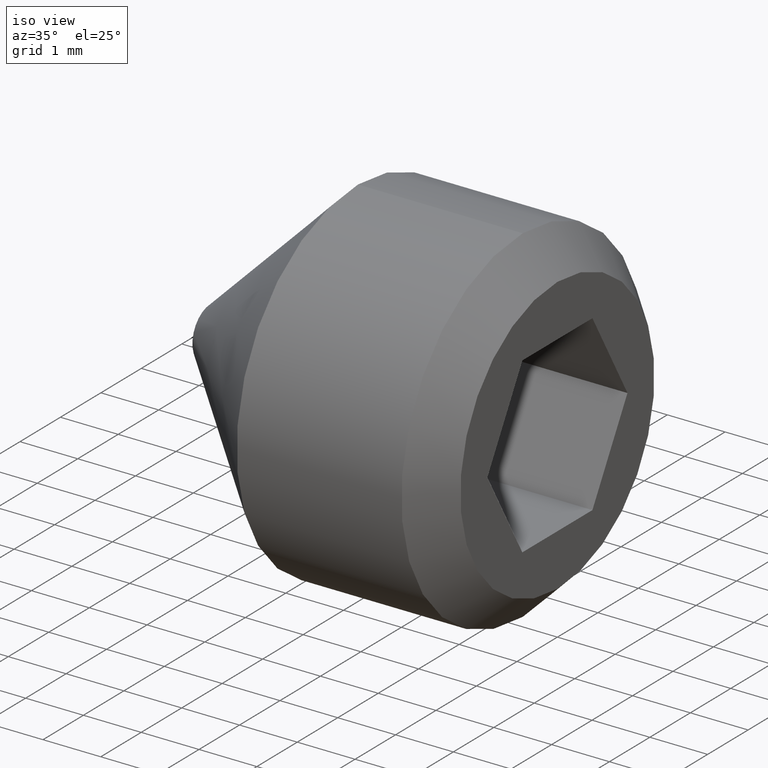
[diagram: clean part render]
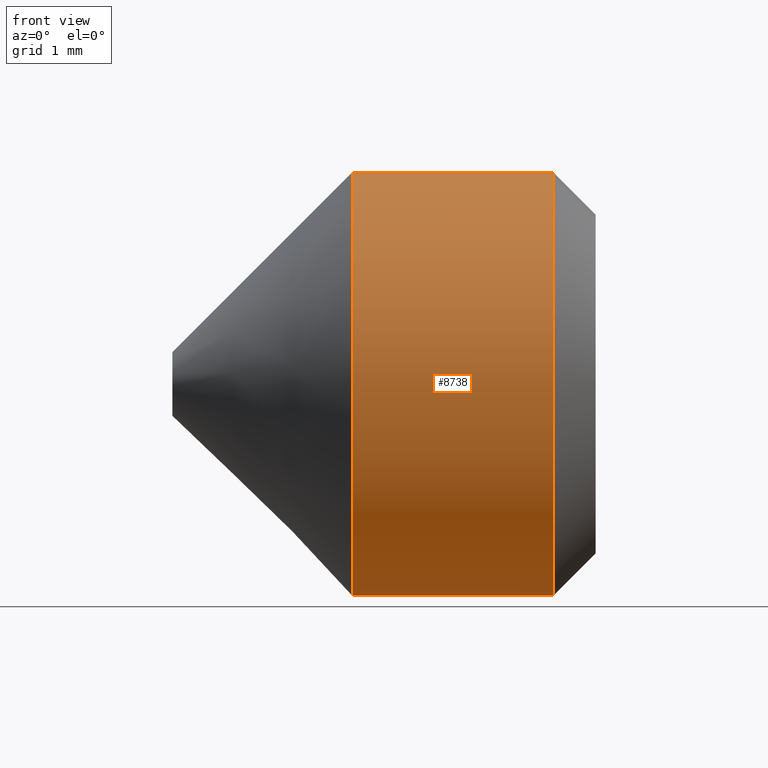
[diagram: tour spotlight — one face highlighted and labeled with its STEP entity id]
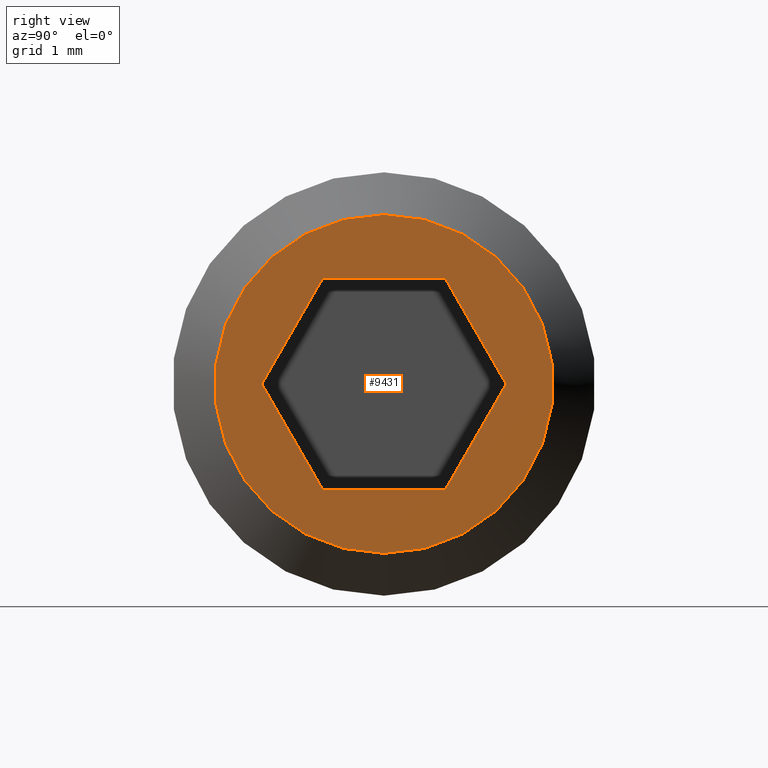
[diagram: tour spotlight — one face highlighted and labeled with its STEP entity id]
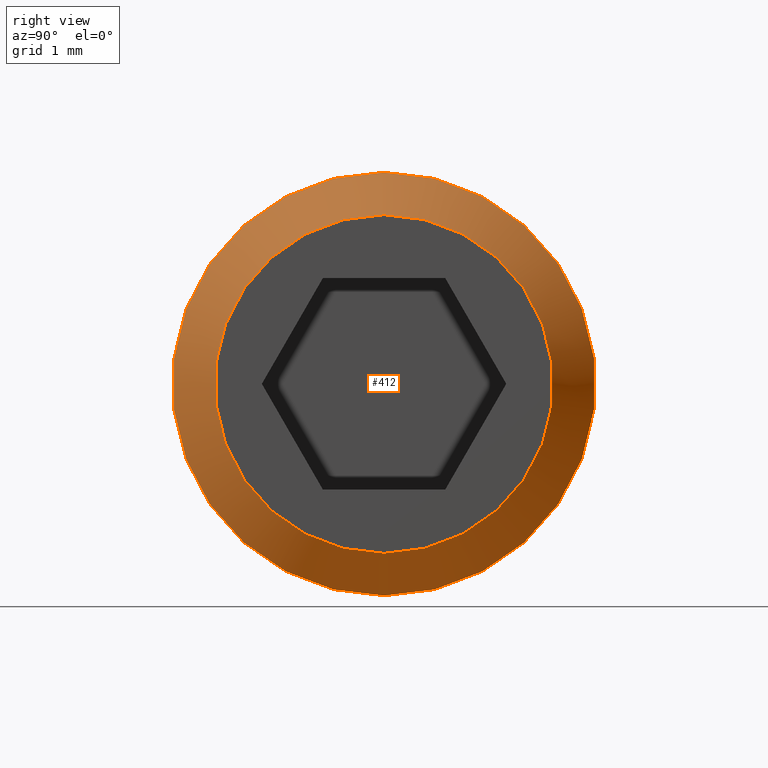
[diagram: tour spotlight — one face highlighted and labeled with its STEP entity id]
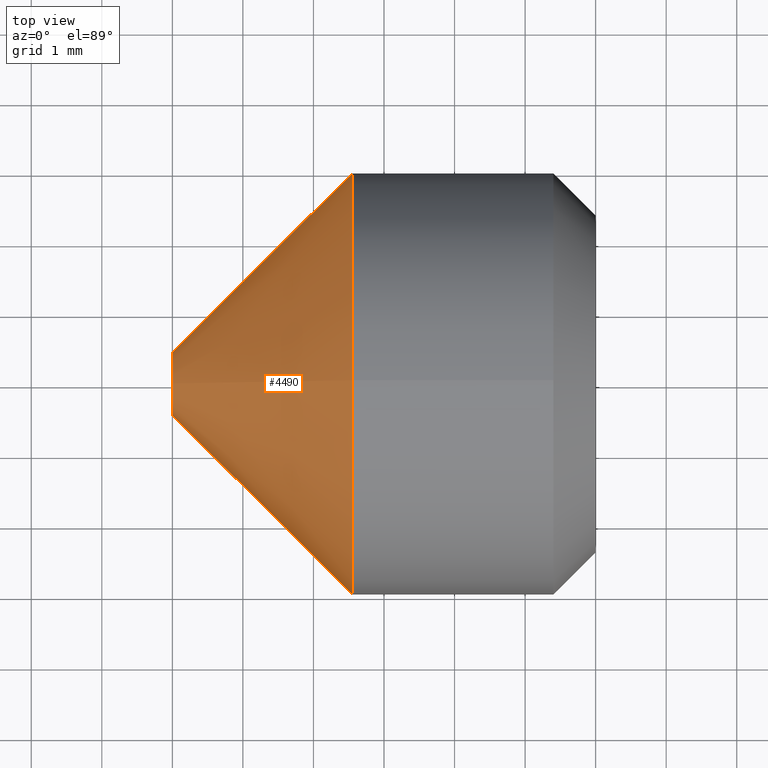
[diagram: tour spotlight — one face highlighted and labeled with its STEP entity id]
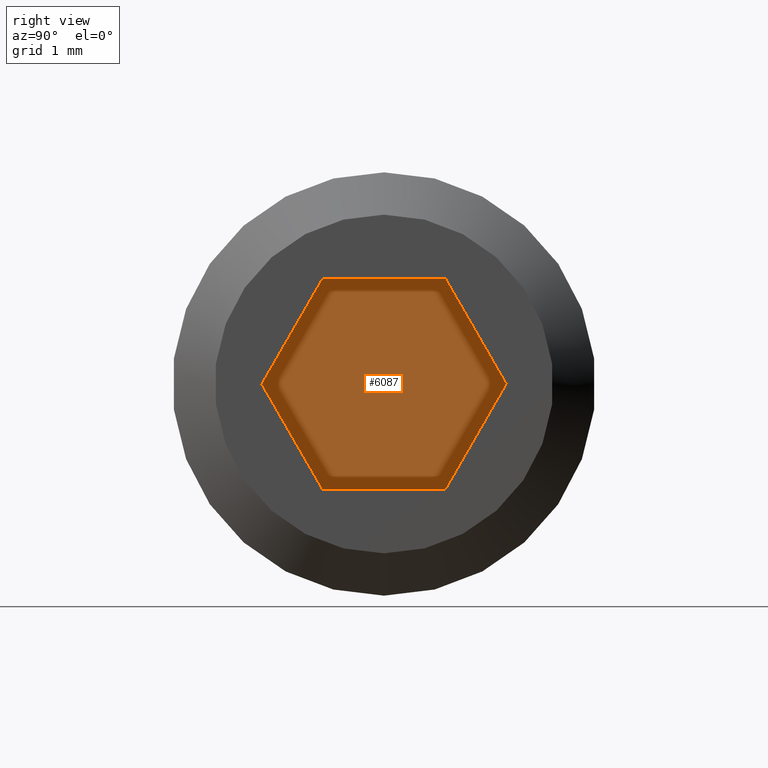
[diagram: tour spotlight — one face highlighted and labeled with its STEP entity id]
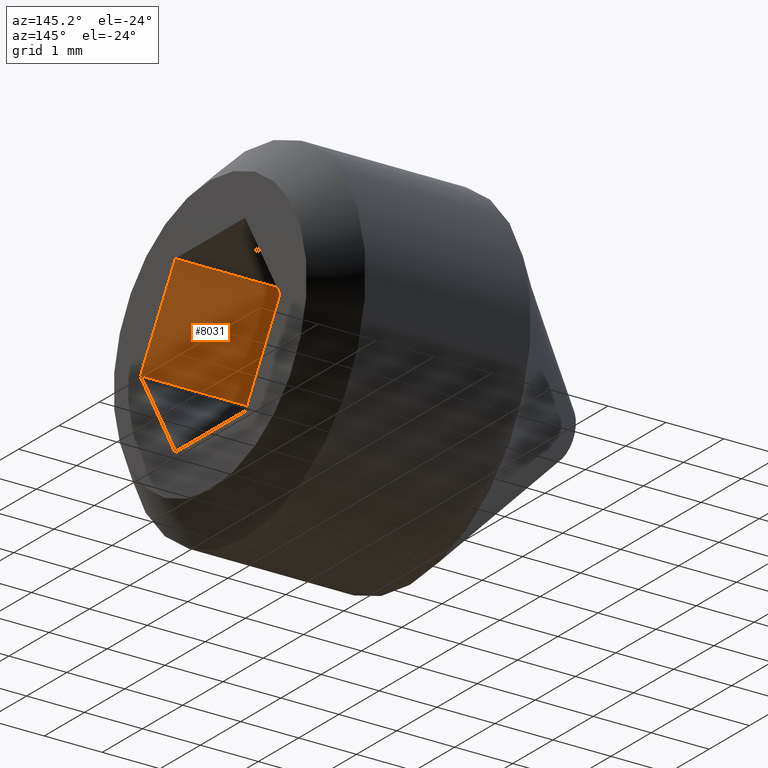
[diagram: tour spotlight — one face highlighted and labeled with its STEP entity id]
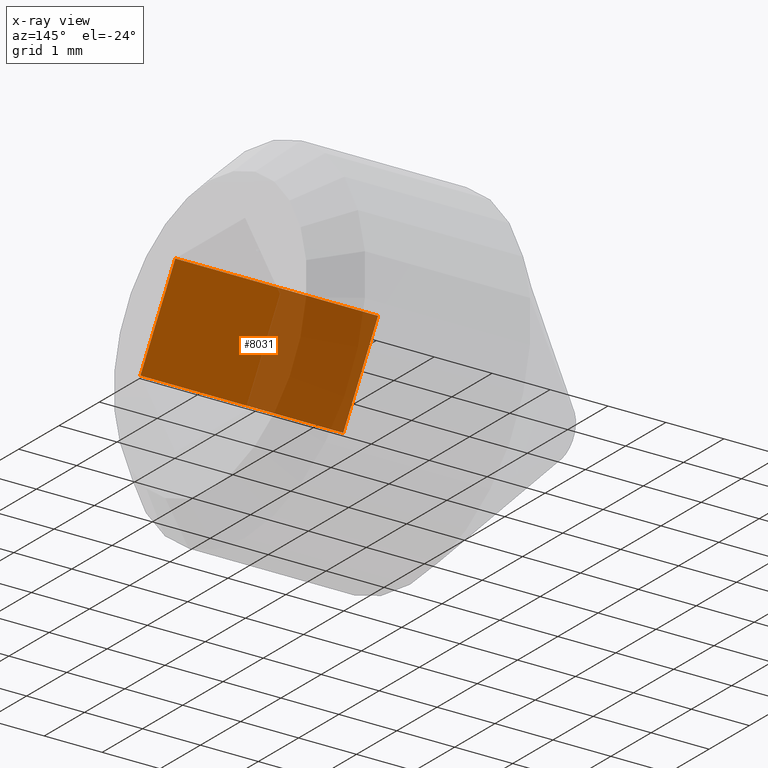
[diagram: x-ray of the same camera — body ghosted, this tour face saturated]
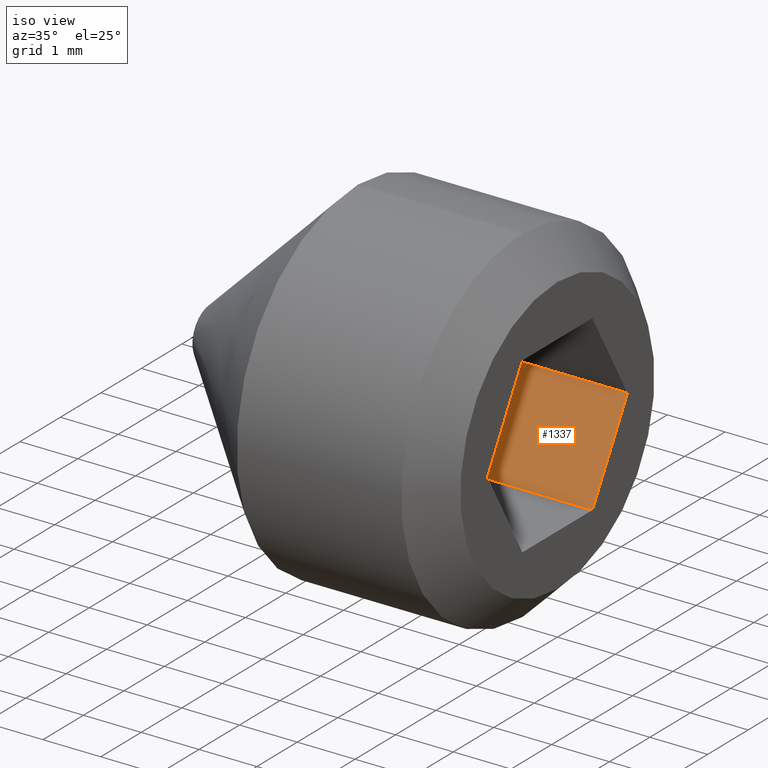
[diagram: tour spotlight — one face highlighted and labeled with its STEP entity id]
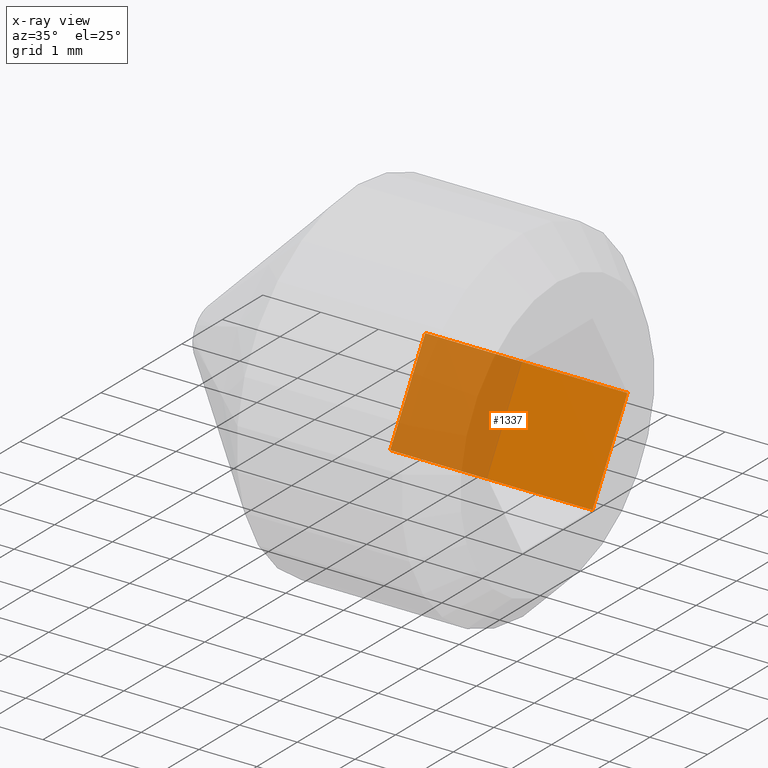
[diagram: x-ray of the same camera — body ghosted, this tour face saturated]
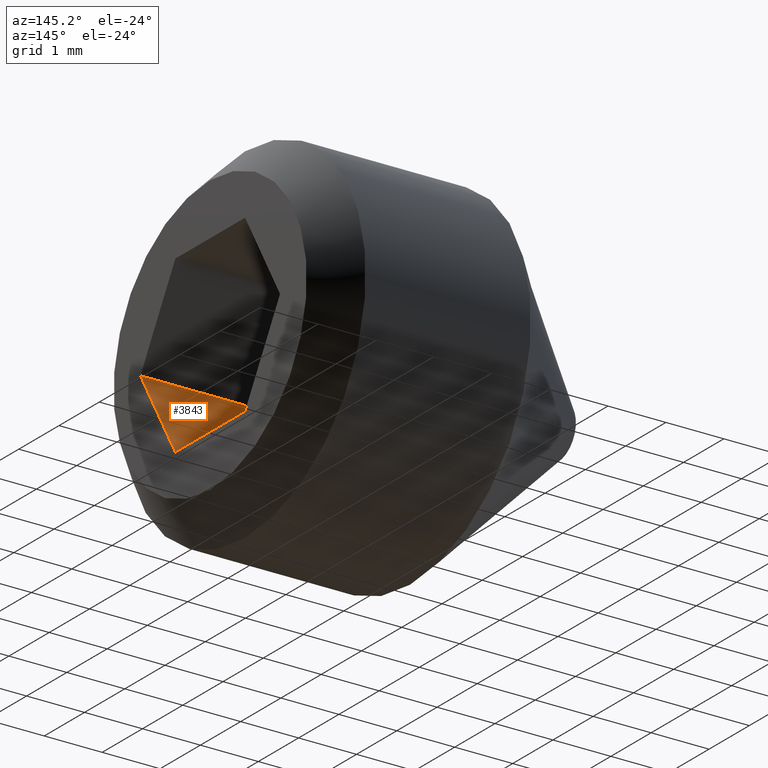
[diagram: tour spotlight — one face highlighted and labeled with its STEP entity id]
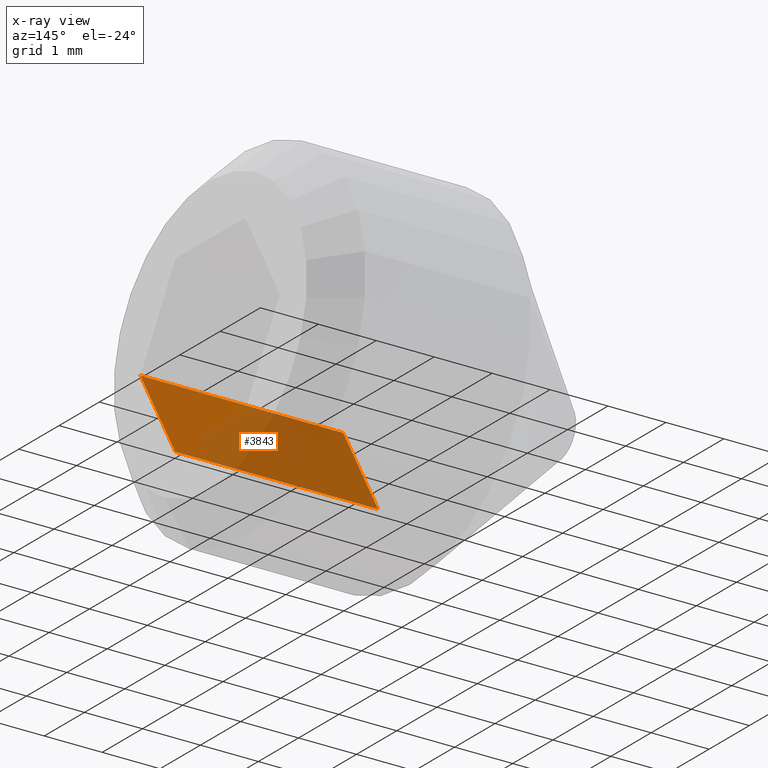
[diagram: x-ray of the same camera — body ghosted, this tour face saturated]
A machine part: a face-by-face anatomy tour. The part has 157 B-rep faces; the first image is the clean iso view, then the 8 largest visible faces are spotlighted one at a time (largest first), each with its STEP entity span.

Face 1 — front view, entity #8738. In plain terms, the highlighted cylindrical surface (bore or boss wall) has radius 3 mm, axis along (-1, -0, -0).
Definition (entity closure, byte-faithful):
#638 = DIRECTION ( 'NONE',  ( 0.0000000000000000000, 0.0000000000000000000, -1.000000000000000000 ) ) ;
#789 = EDGE_LOOP ( 'NONE', ( #6239 ) ) ;
#926 = CYLINDRICAL_SURFACE ( 'NONE', #8397, 3.000000000000000400 ) ;
#939 = CARTESIAN_POINT ( 'NONE',  ( 2.549999999999971000, 0.0000000000000000000, 0.0000000000000000000 ) ) ;
#1378 = AXIS2_PLACEMENT_3D ( 'NONE', #3950, #8122, #638 ) ;
#1866 = EDGE_LOOP ( 'NONE', ( #10400 ) ) ;
#1979 = FACE_OUTER_BOUND ( 'NONE', #789, .T. ) ;
#2183 = CIRCLE ( 'NONE', #1378, 3.000000000000000400 ) ;
#2530 = DIRECTION ( 'NONE',  ( -1.000000000000000000, -0.0000000000000000000, -0.0000000000000000000 ) ) ;
#3091 = CARTESIAN_POINT ( 'NONE',  ( 6.000000000000000000, 0.0000000000000000000, 0.0000000000000000000 ) ) ;
#3950 = CARTESIAN_POINT ( 'NONE',  ( 5.399999999999998600, 0.0000000000000000000, 0.0000000000000000000 ) ) ;
#5379 = EDGE_CURVE ( 'NONE', #9236, #9236, #2183, .T. ) ;
#5628 = VERTEX_POINT ( 'NONE', #10030 ) ;
#5786 = DIRECTION ( 'NONE',  ( 0.0000000000000000000, 0.0000000000000000000, 1.000000000000000000 ) ) ;
#6239 = ORIENTED_EDGE ( 'NONE', *, *, #5379, .T. ) ;
#6387 = DIRECTION ( 'NONE',  ( -1.000000000000000000, -0.0000000000000000000, -0.0000000000000000000 ) ) ;
#7486 = CARTESIAN_POINT ( 'NONE',  ( 5.399999999999998600, 0.0000000000000000000, -3.000000000000000400 ) ) ;
#7923 = EDGE_CURVE ( 'NONE', #5628, #5628, #8519, .T. ) ;
#8085 = FACE_OUTER_BOUND ( 'NONE', #1866, .T. ) ;
#8122 = DIRECTION ( 'NONE',  ( -1.000000000000000000, 0.0000000000000000000, 0.0000000000000000000 ) ) ;
#8147 = DIRECTION ( 'NONE',  ( 0.0000000000000000000, 0.0000000000000000000, 1.000000000000000000 ) ) ;
#8397 = AXIS2_PLACEMENT_3D ( 'NONE', #3091, #6387, #8147 ) ;
#8519 = CIRCLE ( 'NONE', #9302, 3.000000000000000400 ) ;
#8738 = ADVANCED_FACE ( 'NONE', ( #1979, #8085 ), #926, .T. ) ;
#9236 = VERTEX_POINT ( 'NONE', #7486 ) ;
#9302 = AXIS2_PLACEMENT_3D ( 'NONE', #939, #2530, #5786 ) ;
#10030 = CARTESIAN_POINT ( 'NONE',  ( 2.549999999999971000, 0.0000000000000000000, 3.000000000000000400 ) ) ;
#10400 = ORIENTED_EDGE ( 'NONE', *, *, #7923, .F. ) ;

Face 2 — right view, entity #9431. In plain terms, the highlighted planar face has unit normal (1, 0, 0).
Definition (entity closure, byte-faithful):
#431 = VECTOR ( 'NONE', #7477, 1000.000000000000100 ) ;
#485 = LINE ( 'NONE', #1594, #8790 ) ;
#511 = DIRECTION ( 'NONE',  ( 1.000000000000000000, 0.0000000000000000000, 0.0000000000000000000 ) ) ;
#791 = ORIENTED_EDGE ( 'NONE', *, *, #9802, .F. ) ;
#1594 = CARTESIAN_POINT ( 'NONE',  ( 6.000000000000000000, -1.732050807568877000, 4.566523201967821500E-016 ) ) ;
#2084 = CARTESIAN_POINT ( 'NONE',  ( 6.000000000000000000, -0.8660254037844380400, 1.500000000000000000 ) ) ;
#2174 = VECTOR ( 'NONE', #7798, 1000.000000000000000 ) ;
#2626 = EDGE_CURVE ( 'NONE', #10735, #4256, #2858, .T. ) ;
#2773 = EDGE_CURVE ( 'NONE', #7934, #8188, #485, .T. ) ;
#2858 = LINE ( 'NONE', #8204, #6663 ) ;
#3130 = VERTEX_POINT ( 'NONE', #2084 ) ;
#3460 = CARTESIAN_POINT ( 'NONE',  ( 6.000000000000000000, 0.8660254037844393700, 1.500000000000000000 ) ) ;
#3749 = VERTEX_POINT ( 'NONE', #7335 ) ;
#3902 = EDGE_LOOP ( 'NONE', ( #6158, #9292, #6882, #791, #8590, #9834 ) ) ;
#3925 = FACE_OUTER_BOUND ( 'NONE', #8796, .T. ) ;
#4030 = PLANE ( 'NONE',  #6490 ) ;
#4172 = DIRECTION ( 'NONE',  ( 0.0000000000000000000, -0.5000000000000002200, -0.8660254037844384900 ) ) ;
#4250 = VECTOR ( 'NONE', #4172, 1000.000000000000200 ) ;
#4256 = VERTEX_POINT ( 'NONE', #9251 ) ;
#4614 = CARTESIAN_POINT ( 'NONE',  ( 6.000000000000000000, 0.0000000000000000000, 0.0000000000000000000 ) ) ;
#4824 = CARTESIAN_POINT ( 'NONE',  ( 6.000000000000000000, 1.732050807568877900, 4.034455522966426400E-016 ) ) ;
#4850 = LINE ( 'NONE', #10681, #431 ) ;
#4873 = AXIS2_PLACEMENT_3D ( 'NONE', #4614, #511, #8888 ) ;
#5076 = CARTESIAN_POINT ( 'NONE',  ( 6.000000000000000000, 0.0000000000000000000, -2.400000000000001200 ) ) ;
#5177 = VECTOR ( 'NONE', #10055, 1000.000000000000000 ) ;
#5712 = CARTESIAN_POINT ( 'NONE',  ( 6.000000000000000000, 0.0000000000000000000, 0.0000000000000000000 ) ) ;
#5948 = LINE ( 'NONE', #6974, #2174 ) ;
#6158 = ORIENTED_EDGE ( 'NONE', *, *, #7309, .F. ) ;
#6397 = CARTESIAN_POINT ( 'NONE',  ( 6.000000000000000000, -0.8660254037844388200, -1.499999999999999800 ) ) ;
#6480 = LINE ( 'NONE', #9134, #4250 ) ;
#6490 = AXIS2_PLACEMENT_3D ( 'NONE', #5712, #8029, #8857 ) ;
#6614 = EDGE_CURVE ( 'NONE', #4256, #3130, #7652, .T. ) ;
#6663 = VECTOR ( 'NONE', #8953, 1000.000000000000200 ) ;
#6823 = EDGE_CURVE ( 'NONE', #8188, #3749, #5948, .T. ) ;
#6882 = ORIENTED_EDGE ( 'NONE', *, *, #2626, .F. ) ;
#6974 = CARTESIAN_POINT ( 'NONE',  ( 6.000000000000000000, -0.8660254037844388200, -1.499999999999999800 ) ) ;
#7309 = EDGE_CURVE ( 'NONE', #3130, #7934, #6480, .T. ) ;
#7335 = CARTESIAN_POINT ( 'NONE',  ( 6.000000000000000000, 0.8660254037844389300, -1.499999999999999800 ) ) ;
#7477 = DIRECTION ( 'NONE',  ( 0.0000000000000000000, 0.5000000000000001100, 0.8660254037844386000 ) ) ;
#7652 = LINE ( 'NONE', #3460, #5177 ) ;
#7798 = DIRECTION ( 'NONE',  ( 0.0000000000000000000, 1.000000000000000000, 0.0000000000000000000 ) ) ;
#7934 = VERTEX_POINT ( 'NONE', #10036 ) ;
#8029 = DIRECTION ( 'NONE',  ( 1.000000000000000000, 0.0000000000000000000, 0.0000000000000000000 ) ) ;
#8041 = ORIENTED_EDGE ( 'NONE', *, *, #9299, .T. ) ;
#8188 = VERTEX_POINT ( 'NONE', #6397 ) ;
#8204 = CARTESIAN_POINT ( 'NONE',  ( 6.000000000000000000, 1.732050807568877900, 4.034455522966426400E-016 ) ) ;
#8238 = DIRECTION ( 'NONE',  ( 0.0000000000000000000, 0.4999999999999997200, -0.8660254037844388200 ) ) ;
#8590 = ORIENTED_EDGE ( 'NONE', *, *, #6823, .F. ) ;
#8593 = FACE_BOUND ( 'NONE', #3902, .T. ) ;
#8790 = VECTOR ( 'NONE', #8238, 1000.000000000000100 ) ;
#8796 = EDGE_LOOP ( 'NONE', ( #8041 ) ) ;
#8853 = CIRCLE ( 'NONE', #4873, 2.400000000000001200 ) ;
#8857 = DIRECTION ( 'NONE',  ( 0.0000000000000000000, 0.0000000000000000000, -1.000000000000000000 ) ) ;
#8888 = DIRECTION ( 'NONE',  ( 0.0000000000000000000, 0.0000000000000000000, -1.000000000000000000 ) ) ;
#8953 = DIRECTION ( 'NONE',  ( 0.0000000000000000000, -0.5000000000000000000, 0.8660254037844386000 ) ) ;
#9134 = CARTESIAN_POINT ( 'NONE',  ( 6.000000000000000000, -0.8660254037844380400, 1.500000000000000000 ) ) ;
#9251 = CARTESIAN_POINT ( 'NONE',  ( 6.000000000000000000, 0.8660254037844393700, 1.500000000000000000 ) ) ;
#9292 = ORIENTED_EDGE ( 'NONE', *, *, #6614, .F. ) ;
#9299 = EDGE_CURVE ( 'NONE', #10140, #10140, #8853, .T. ) ;
#9431 = ADVANCED_FACE ( 'NONE', ( #8593, #3925 ), #4030, .T. ) ;
#9802 = EDGE_CURVE ( 'NONE', #3749, #10735, #4850, .T. ) ;
#9834 = ORIENTED_EDGE ( 'NONE', *, *, #2773, .F. ) ;
#10036 = CARTESIAN_POINT ( 'NONE',  ( 6.000000000000000000, -1.732050807568877200, 5.421010862427522200E-016 ) ) ;
#10055 = DIRECTION ( 'NONE',  ( 0.0000000000000000000, -1.000000000000000000, 0.0000000000000000000 ) ) ;
#10140 = VERTEX_POINT ( 'NONE', #5076 ) ;
#10681 = CARTESIAN_POINT ( 'NONE',  ( 6.000000000000000000, 0.8660254037844389300, -1.499999999999999800 ) ) ;
#10735 = VERTEX_POINT ( 'NONE', #4824 ) ;

Face 3 — right view, entity #412. In plain terms, the highlighted conical surface has half-angle 45 deg.
Definition (entity closure, byte-faithful):
#412 = ADVANCED_FACE ( 'NONE', ( #1567, #3510 ), #2086, .T. ) ;
#511 = DIRECTION ( 'NONE',  ( 1.000000000000000000, 0.0000000000000000000, 0.0000000000000000000 ) ) ;
#638 = DIRECTION ( 'NONE',  ( 0.0000000000000000000, 0.0000000000000000000, -1.000000000000000000 ) ) ;
#1191 = CARTESIAN_POINT ( 'NONE',  ( 6.000000000000000000, 0.0000000000000000000, 0.0000000000000000000 ) ) ;
#1378 = AXIS2_PLACEMENT_3D ( 'NONE', #3950, #8122, #638 ) ;
#1567 = FACE_OUTER_BOUND ( 'NONE', #6094, .T. ) ;
#2086 = CONICAL_SURFACE ( 'NONE', #10053, 2.400000000000001200, 0.7853981633974465000 ) ;
#2183 = CIRCLE ( 'NONE', #1378, 3.000000000000000400 ) ;
#3115 = ORIENTED_EDGE ( 'NONE', *, *, #5379, .F. ) ;
#3510 = FACE_BOUND ( 'NONE', #5746, .T. ) ;
#3950 = CARTESIAN_POINT ( 'NONE',  ( 5.399999999999998600, 0.0000000000000000000, 0.0000000000000000000 ) ) ;
#4614 = CARTESIAN_POINT ( 'NONE',  ( 6.000000000000000000, 0.0000000000000000000, 0.0000000000000000000 ) ) ;
#4832 = ORIENTED_EDGE ( 'NONE', *, *, #9299, .F. ) ;
#4873 = AXIS2_PLACEMENT_3D ( 'NONE', #4614, #511, #8888 ) ;
#5076 = CARTESIAN_POINT ( 'NONE',  ( 6.000000000000000000, 0.0000000000000000000, -2.400000000000001200 ) ) ;
#5379 = EDGE_CURVE ( 'NONE', #9236, #9236, #2183, .T. ) ;
#5746 = EDGE_LOOP ( 'NONE', ( #4832 ) ) ;
#6094 = EDGE_LOOP ( 'NONE', ( #3115 ) ) ;
#7486 = CARTESIAN_POINT ( 'NONE',  ( 5.399999999999998600, 0.0000000000000000000, -3.000000000000000400 ) ) ;
#8122 = DIRECTION ( 'NONE',  ( -1.000000000000000000, 0.0000000000000000000, 0.0000000000000000000 ) ) ;
#8853 = CIRCLE ( 'NONE', #4873, 2.400000000000001200 ) ;
#8888 = DIRECTION ( 'NONE',  ( 0.0000000000000000000, 0.0000000000000000000, -1.000000000000000000 ) ) ;
#9236 = VERTEX_POINT ( 'NONE', #7486 ) ;
#9299 = EDGE_CURVE ( 'NONE', #10140, #10140, #8853, .T. ) ;
#9564 = DIRECTION ( 'NONE',  ( -1.000000000000000000, 0.0000000000000000000, 0.0000000000000000000 ) ) ;
#10053 = AXIS2_PLACEMENT_3D ( 'NONE', #1191, #9564, #10395 ) ;
#10140 = VERTEX_POINT ( 'NONE', #5076 ) ;
#10395 = DIRECTION ( 'NONE',  ( 0.0000000000000000000, 0.0000000000000000000, 1.000000000000000000 ) ) ;

Face 4 — top view, entity #4490. In plain terms, the highlighted conical surface has half-angle 45 deg.
Definition (entity closure, byte-faithful):
#939 = CARTESIAN_POINT ( 'NONE',  ( 2.549999999999971000, 0.0000000000000000000, 0.0000000000000000000 ) ) ;
#1400 = EDGE_LOOP ( 'NONE', ( #6268 ) ) ;
#1836 = CIRCLE ( 'NONE', #10619, 0.4500000000000000100 ) ;
#1997 = CARTESIAN_POINT ( 'NONE',  ( 4.347496136973103900E-016, 0.0000000000000000000, 0.0000000000000000000 ) ) ;
#2227 = DIRECTION ( 'NONE',  ( 0.0000000000000000000, 0.0000000000000000000, 1.000000000000000000 ) ) ;
#2530 = DIRECTION ( 'NONE',  ( -1.000000000000000000, -0.0000000000000000000, -0.0000000000000000000 ) ) ;
#3356 = FACE_OUTER_BOUND ( 'NONE', #4981, .T. ) ;
#3499 = FACE_BOUND ( 'NONE', #1400, .T. ) ;
#4490 = ADVANCED_FACE ( 'NONE', ( #3356, #3499 ), #8540, .T. ) ;
#4981 = EDGE_LOOP ( 'NONE', ( #8106 ) ) ;
#5628 = VERTEX_POINT ( 'NONE', #10030 ) ;
#5786 = DIRECTION ( 'NONE',  ( 0.0000000000000000000, 0.0000000000000000000, 1.000000000000000000 ) ) ;
#5883 = VERTEX_POINT ( 'NONE', #9274 ) ;
#6268 = ORIENTED_EDGE ( 'NONE', *, *, #8667, .F. ) ;
#7227 = CARTESIAN_POINT ( 'NONE',  ( 4.347496136973103900E-016, 0.0000000000000000000, 0.0000000000000000000 ) ) ;
#7817 = DIRECTION ( 'NONE',  ( 0.0000000000000000000, 0.0000000000000000000, -1.000000000000000000 ) ) ;
#7923 = EDGE_CURVE ( 'NONE', #5628, #5628, #8519, .T. ) ;
#8106 = ORIENTED_EDGE ( 'NONE', *, *, #7923, .T. ) ;
#8519 = CIRCLE ( 'NONE', #9302, 3.000000000000000400 ) ;
#8540 = CONICAL_SURFACE ( 'NONE', #10335, 0.4500000000000000100, 0.7853981633974541600 ) ;
#8667 = EDGE_CURVE ( 'NONE', #5883, #5883, #1836, .T. ) ;
#9274 = CARTESIAN_POINT ( 'NONE',  ( 4.347496136973103900E-016, 0.0000000000000000000, 0.4500000000000000100 ) ) ;
#9302 = AXIS2_PLACEMENT_3D ( 'NONE', #939, #2530, #5786 ) ;
#10030 = CARTESIAN_POINT ( 'NONE',  ( 2.549999999999971000, 0.0000000000000000000, 3.000000000000000400 ) ) ;
#10323 = DIRECTION ( 'NONE',  ( 1.000000000000000000, 0.0000000000000000000, 0.0000000000000000000 ) ) ;
#10335 = AXIS2_PLACEMENT_3D ( 'NONE', #1997, #10323, #7817 ) ;
#10490 = DIRECTION ( 'NONE',  ( -1.000000000000000000, -0.0000000000000000000, -0.0000000000000000000 ) ) ;
#10619 = AXIS2_PLACEMENT_3D ( 'NONE', #7227, #10490, #2227 ) ;

Face 5 — right view, entity #6087. In plain terms, the highlighted planar face has unit normal (-1, -0, 0).
Definition (entity closure, byte-faithful):
#128 = AXIS2_PLACEMENT_3D ( 'NONE', #9603, #2063, #2894 ) ;
#356 = CARTESIAN_POINT ( 'NONE',  ( 2.500000000000000000, -1.732050807568877000, 2.423462082778660800E-016 ) ) ;
#427 = CARTESIAN_POINT ( 'NONE',  ( 2.500000000000000000, -1.732050807568877000, 2.423462082778660800E-016 ) ) ;
#493 = EDGE_CURVE ( 'NONE', #6293, #5190, #10250, .T. ) ;
#601 = CARTESIAN_POINT ( 'NONE',  ( 2.500000000000000000, 0.8660254037844389300, -1.500000000000000000 ) ) ;
#943 = DIRECTION ( 'NONE',  ( 0.0000000000000000000, -0.5000000000000000000, 0.8660254037844386000 ) ) ;
#1029 = ORIENTED_EDGE ( 'NONE', *, *, #9733, .T. ) ;
#1250 = DIRECTION ( 'NONE',  ( 0.0000000000000000000, 0.4999999999999997200, -0.8660254037844388200 ) ) ;
#1742 = LINE ( 'NONE', #9188, #5260 ) ;
#2007 = CARTESIAN_POINT ( 'NONE',  ( 2.500000000000000000, 1.732050807568877900, 1.891394403777266000E-016 ) ) ;
#2063 = DIRECTION ( 'NONE',  ( -1.000000000000000000, -0.0000000000000000000, 0.0000000000000000000 ) ) ;
#2312 = VECTOR ( 'NONE', #8261, 1000.000000000000100 ) ;
#2600 = CARTESIAN_POINT ( 'NONE',  ( 2.500000000000000000, 1.732050807568877900, 1.891394403777266000E-016 ) ) ;
#2894 = DIRECTION ( 'NONE',  ( 0.0000000000000000000, 0.0000000000000000000, 1.000000000000000000 ) ) ;
#3037 = CARTESIAN_POINT ( 'NONE',  ( 2.500000000000000000, -0.8660254037844380400, 1.499999999999999800 ) ) ;
#3039 = EDGE_CURVE ( 'NONE', #5619, #6293, #1742, .T. ) ;
#3329 = ORIENTED_EDGE ( 'NONE', *, *, #8262, .T. ) ;
#3766 = VECTOR ( 'NONE', #943, 1000.000000000000200 ) ;
#3933 = VERTEX_POINT ( 'NONE', #2007 ) ;
#4387 = EDGE_CURVE ( 'NONE', #3933, #5619, #4789, .T. ) ;
#4565 = VERTEX_POINT ( 'NONE', #5296 ) ;
#4780 = CARTESIAN_POINT ( 'NONE',  ( 2.500000000000000000, -0.8660254037844388200, -1.500000000000000000 ) ) ;
#4789 = LINE ( 'NONE', #2600, #3766 ) ;
#5190 = VERTEX_POINT ( 'NONE', #356 ) ;
#5260 = VECTOR ( 'NONE', #9269, 1000.000000000000000 ) ;
#5296 = CARTESIAN_POINT ( 'NONE',  ( 2.500000000000000000, 0.8660254037844389300, -1.500000000000000000 ) ) ;
#5437 = VECTOR ( 'NONE', #1250, 1000.000000000000100 ) ;
#5619 = VERTEX_POINT ( 'NONE', #5791 ) ;
#5791 = CARTESIAN_POINT ( 'NONE',  ( 2.500000000000000000, 0.8660254037844393700, 1.499999999999999800 ) ) ;
#5865 = ORIENTED_EDGE ( 'NONE', *, *, #6401, .T. ) ;
#6087 = ADVANCED_FACE ( 'NONE', ( #7786 ), #6188, .F. ) ;
#6122 = VERTEX_POINT ( 'NONE', #6325 ) ;
#6188 = PLANE ( 'NONE',  #128 ) ;
#6293 = VERTEX_POINT ( 'NONE', #9275 ) ;
#6325 = CARTESIAN_POINT ( 'NONE',  ( 2.500000000000000000, -0.8660254037844388200, -1.500000000000000000 ) ) ;
#6401 = EDGE_CURVE ( 'NONE', #5190, #6122, #10344, .T. ) ;
#6785 = VECTOR ( 'NONE', #8053, 1000.000000000000200 ) ;
#6813 = LINE ( 'NONE', #4780, #9115 ) ;
#7150 = ORIENTED_EDGE ( 'NONE', *, *, #3039, .T. ) ;
#7413 = DIRECTION ( 'NONE',  ( 0.0000000000000000000, 1.000000000000000000, 0.0000000000000000000 ) ) ;
#7786 = FACE_OUTER_BOUND ( 'NONE', #8852, .T. ) ;
#8053 = DIRECTION ( 'NONE',  ( 0.0000000000000000000, -0.5000000000000002200, -0.8660254037844384900 ) ) ;
#8261 = DIRECTION ( 'NONE',  ( 0.0000000000000000000, 0.5000000000000001100, 0.8660254037844386000 ) ) ;
#8262 = EDGE_CURVE ( 'NONE', #4565, #3933, #9591, .T. ) ;
#8852 = EDGE_LOOP ( 'NONE', ( #10462, #5865, #1029, #3329, #10542, #7150 ) ) ;
#9115 = VECTOR ( 'NONE', #7413, 1000.000000000000000 ) ;
#9188 = CARTESIAN_POINT ( 'NONE',  ( 2.500000000000000000, 0.8660254037844393700, 1.499999999999999800 ) ) ;
#9269 = DIRECTION ( 'NONE',  ( 0.0000000000000000000, -1.000000000000000000, 0.0000000000000000000 ) ) ;
#9275 = CARTESIAN_POINT ( 'NONE',  ( 2.500000000000000000, -0.8660254037844380400, 1.499999999999999800 ) ) ;
#9591 = LINE ( 'NONE', #601, #2312 ) ;
#9603 = CARTESIAN_POINT ( 'NONE',  ( 2.500000000000000000, 1.084202172485504400E-015, 2.999999999999999100 ) ) ;
#9733 = EDGE_CURVE ( 'NONE', #6122, #4565, #6813, .T. ) ;
#10250 = LINE ( 'NONE', #3037, #6785 ) ;
#10344 = LINE ( 'NONE', #427, #5437 ) ;
#10462 = ORIENTED_EDGE ( 'NONE', *, *, #493, .T. ) ;
#10542 = ORIENTED_EDGE ( 'NONE', *, *, #4387, .T. ) ;

Face 6 — auxiliary view, entity #8031. An x-ray twin of the same camera follows (body ghosted, this face saturated) — the face is partly hidden behind the body. In plain terms, the highlighted planar face has unit normal (-0, -0.866, 0.5).
Definition (entity closure, byte-faithful):
#160 = VECTOR ( 'NONE', #5500, 1000.000000000000000 ) ;
#356 = CARTESIAN_POINT ( 'NONE',  ( 2.500000000000000000, -1.732050807568877000, 2.423462082778660800E-016 ) ) ;
#493 = EDGE_CURVE ( 'NONE', #6293, #5190, #10250, .T. ) ;
#736 = FACE_OUTER_BOUND ( 'NONE', #4073, .T. ) ;
#1078 = CARTESIAN_POINT ( 'NONE',  ( 2.500000000000000000, -0.8660254037844380400, 1.499999999999999800 ) ) ;
#1722 = ORIENTED_EDGE ( 'NONE', *, *, #493, .F. ) ;
#2024 = ORIENTED_EDGE ( 'NONE', *, *, #9287, .T. ) ;
#2084 = CARTESIAN_POINT ( 'NONE',  ( 6.000000000000000000, -0.8660254037844380400, 1.500000000000000000 ) ) ;
#2902 = CARTESIAN_POINT ( 'NONE',  ( 2.500000000000000000, -0.8660254037844380400, 1.499999999999999800 ) ) ;
#2945 = LINE ( 'NONE', #7166, #9310 ) ;
#3037 = CARTESIAN_POINT ( 'NONE',  ( 2.500000000000000000, -0.8660254037844380400, 1.499999999999999800 ) ) ;
#3130 = VERTEX_POINT ( 'NONE', #2084 ) ;
#3662 = ORIENTED_EDGE ( 'NONE', *, *, #6141, .F. ) ;
#4073 = EDGE_LOOP ( 'NONE', ( #5647, #3662, #1722, #2024 ) ) ;
#4172 = DIRECTION ( 'NONE',  ( 0.0000000000000000000, -0.5000000000000002200, -0.8660254037844384900 ) ) ;
#4250 = VECTOR ( 'NONE', #4172, 1000.000000000000200 ) ;
#5127 = PLANE ( 'NONE',  #7111 ) ;
#5157 = DIRECTION ( 'NONE',  ( -3.061515884555945600E-017, -0.8660254037844386000, 0.5000000000000003300 ) ) ;
#5190 = VERTEX_POINT ( 'NONE', #356 ) ;
#5500 = DIRECTION ( 'NONE',  ( 1.000000000000000000, -0.0000000000000000000, 6.123031769111886300E-017 ) ) ;
#5647 = ORIENTED_EDGE ( 'NONE', *, *, #7309, .T. ) ;
#6141 = EDGE_CURVE ( 'NONE', #5190, #7934, #2945, .T. ) ;
#6293 = VERTEX_POINT ( 'NONE', #9275 ) ;
#6444 = DIRECTION ( 'NONE',  ( 1.000000000000000000, -0.0000000000000000000, 6.123031769111886300E-017 ) ) ;
#6480 = LINE ( 'NONE', #9134, #4250 ) ;
#6785 = VECTOR ( 'NONE', #8053, 1000.000000000000200 ) ;
#6915 = DIRECTION ( 'NONE',  ( 0.0000000000000000000, -0.5000000000000002200, -0.8660254037844384900 ) ) ;
#7111 = AXIS2_PLACEMENT_3D ( 'NONE', #1078, #5157, #6915 ) ;
#7166 = CARTESIAN_POINT ( 'NONE',  ( 2.500000000000000000, -1.732050807568877000, 2.423462082778660800E-016 ) ) ;
#7309 = EDGE_CURVE ( 'NONE', #3130, #7934, #6480, .T. ) ;
#7934 = VERTEX_POINT ( 'NONE', #10036 ) ;
#8031 = ADVANCED_FACE ( 'NONE', ( #736 ), #5127, .F. ) ;
#8053 = DIRECTION ( 'NONE',  ( 0.0000000000000000000, -0.5000000000000002200, -0.8660254037844384900 ) ) ;
#9134 = CARTESIAN_POINT ( 'NONE',  ( 6.000000000000000000, -0.8660254037844380400, 1.500000000000000000 ) ) ;
#9275 = CARTESIAN_POINT ( 'NONE',  ( 2.500000000000000000, -0.8660254037844380400, 1.499999999999999800 ) ) ;
#9287 = EDGE_CURVE ( 'NONE', #6293, #3130, #10136, .T. ) ;
#9310 = VECTOR ( 'NONE', #6444, 1000.000000000000000 ) ;
#10036 = CARTESIAN_POINT ( 'NONE',  ( 6.000000000000000000, -1.732050807568877200, 5.421010862427522200E-016 ) ) ;
#10136 = LINE ( 'NONE', #2902, #160 ) ;
#10250 = LINE ( 'NONE', #3037, #6785 ) ;

Face 7 — iso view, entity #1337. An x-ray twin of the same camera follows (body ghosted, this face saturated) — the face is partly hidden behind the body. In plain terms, the highlighted planar face has unit normal (0, 0.866, -0.5).
Definition (entity closure, byte-faithful):
#36 = VECTOR ( 'NONE', #8162, 1000.000000000000000 ) ;
#79 = EDGE_LOOP ( 'NONE', ( #1845, #925, #6946, #4645 ) ) ;
#232 = VECTOR ( 'NONE', #1134, 1000.000000000000000 ) ;
#431 = VECTOR ( 'NONE', #7477, 1000.000000000000100 ) ;
#601 = CARTESIAN_POINT ( 'NONE',  ( 2.500000000000000000, 0.8660254037844389300, -1.500000000000000000 ) ) ;
#925 = ORIENTED_EDGE ( 'NONE', *, *, #10613, .F. ) ;
#1054 = DIRECTION ( 'NONE',  ( 0.0000000000000000000, 0.5000000000000000000, 0.8660254037844386000 ) ) ;
#1134 = DIRECTION ( 'NONE',  ( 1.000000000000000000, -0.0000000000000000000, 6.123031769111886300E-017 ) ) ;
#1337 = ADVANCED_FACE ( 'NONE', ( #3243 ), #5936, .F. ) ;
#1507 = CARTESIAN_POINT ( 'NONE',  ( 2.500000000000000000, 1.732050807568877900, 1.891394403777266000E-016 ) ) ;
#1845 = ORIENTED_EDGE ( 'NONE', *, *, #9802, .T. ) ;
#2007 = CARTESIAN_POINT ( 'NONE',  ( 2.500000000000000000, 1.732050807568877900, 1.891394403777266000E-016 ) ) ;
#2312 = VECTOR ( 'NONE', #8261, 1000.000000000000100 ) ;
#3243 = FACE_OUTER_BOUND ( 'NONE', #79, .T. ) ;
#3749 = VERTEX_POINT ( 'NONE', #7335 ) ;
#3933 = VERTEX_POINT ( 'NONE', #2007 ) ;
#4509 = LINE ( 'NONE', #4587, #232 ) ;
#4565 = VERTEX_POINT ( 'NONE', #5296 ) ;
#4587 = CARTESIAN_POINT ( 'NONE',  ( 2.500000000000000000, 0.8660254037844389300, -1.500000000000000000 ) ) ;
#4645 = ORIENTED_EDGE ( 'NONE', *, *, #6902, .T. ) ;
#4824 = CARTESIAN_POINT ( 'NONE',  ( 6.000000000000000000, 1.732050807568877900, 4.034455522966426400E-016 ) ) ;
#4850 = LINE ( 'NONE', #10681, #431 ) ;
#5296 = CARTESIAN_POINT ( 'NONE',  ( 2.500000000000000000, 0.8660254037844389300, -1.500000000000000000 ) ) ;
#5936 = PLANE ( 'NONE',  #7994 ) ;
#6902 = EDGE_CURVE ( 'NONE', #4565, #3749, #4509, .T. ) ;
#6946 = ORIENTED_EDGE ( 'NONE', *, *, #8262, .F. ) ;
#7335 = CARTESIAN_POINT ( 'NONE',  ( 6.000000000000000000, 0.8660254037844389300, -1.499999999999999800 ) ) ;
#7477 = DIRECTION ( 'NONE',  ( 0.0000000000000000000, 0.5000000000000001100, 0.8660254037844386000 ) ) ;
#7868 = DIRECTION ( 'NONE',  ( 3.061515884555943800E-017, 0.8660254037844387100, -0.5000000000000001100 ) ) ;
#7994 = AXIS2_PLACEMENT_3D ( 'NONE', #9148, #7868, #1054 ) ;
#8162 = DIRECTION ( 'NONE',  ( 1.000000000000000000, -0.0000000000000000000, 6.123031769111886300E-017 ) ) ;
#8261 = DIRECTION ( 'NONE',  ( 0.0000000000000000000, 0.5000000000000001100, 0.8660254037844386000 ) ) ;
#8262 = EDGE_CURVE ( 'NONE', #4565, #3933, #9591, .T. ) ;
#9148 = CARTESIAN_POINT ( 'NONE',  ( 2.500000000000000000, 0.8660254037844389300, -1.500000000000000000 ) ) ;
#9591 = LINE ( 'NONE', #601, #2312 ) ;
#9802 = EDGE_CURVE ( 'NONE', #3749, #10735, #4850, .T. ) ;
#10534 = LINE ( 'NONE', #1507, #36 ) ;
#10613 = EDGE_CURVE ( 'NONE', #3933, #10735, #10534, .T. ) ;
#10681 = CARTESIAN_POINT ( 'NONE',  ( 6.000000000000000000, 0.8660254037844389300, -1.499999999999999800 ) ) ;
#10735 = VERTEX_POINT ( 'NONE', #4824 ) ;

Face 8 — auxiliary view, entity #3843. An x-ray twin of the same camera follows (body ghosted, this face saturated) — the face is partly hidden behind the body. In plain terms, the highlighted planar face has unit normal (0, -0.866, -0.5).
Definition (entity closure, byte-faithful):
#356 = CARTESIAN_POINT ( 'NONE',  ( 2.500000000000000000, -1.732050807568877000, 2.423462082778660800E-016 ) ) ;
#427 = CARTESIAN_POINT ( 'NONE',  ( 2.500000000000000000, -1.732050807568877000, 2.423462082778660800E-016 ) ) ;
#485 = LINE ( 'NONE', #1594, #8790 ) ;
#523 = EDGE_LOOP ( 'NONE', ( #8952, #6261, #2855, #8103 ) ) ;
#635 = CARTESIAN_POINT ( 'NONE',  ( 2.500000000000000000, -0.8660254037844388200, -1.500000000000000000 ) ) ;
#1018 = EDGE_CURVE ( 'NONE', #6122, #8188, #5863, .T. ) ;
#1021 = DIRECTION ( 'NONE',  ( 3.061515884555941900E-017, -0.8660254037844388200, -0.4999999999999997800 ) ) ;
#1250 = DIRECTION ( 'NONE',  ( 0.0000000000000000000, 0.4999999999999997200, -0.8660254037844388200 ) ) ;
#1594 = CARTESIAN_POINT ( 'NONE',  ( 6.000000000000000000, -1.732050807568877000, 4.566523201967821500E-016 ) ) ;
#2773 = EDGE_CURVE ( 'NONE', #7934, #8188, #485, .T. ) ;
#2855 = ORIENTED_EDGE ( 'NONE', *, *, #6401, .F. ) ;
#2945 = LINE ( 'NONE', #7166, #9310 ) ;
#3843 = ADVANCED_FACE ( 'NONE', ( #7155 ), #8499, .F. ) ;
#5190 = VERTEX_POINT ( 'NONE', #356 ) ;
#5437 = VECTOR ( 'NONE', #1250, 1000.000000000000100 ) ;
#5863 = LINE ( 'NONE', #635, #6256 ) ;
#6014 = CARTESIAN_POINT ( 'NONE',  ( 2.500000000000000000, -1.732050807568877000, 2.423462082778660800E-016 ) ) ;
#6122 = VERTEX_POINT ( 'NONE', #6325 ) ;
#6141 = EDGE_CURVE ( 'NONE', #5190, #7934, #2945, .T. ) ;
#6256 = VECTOR ( 'NONE', #6606, 1000.000000000000000 ) ;
#6261 = ORIENTED_EDGE ( 'NONE', *, *, #1018, .F. ) ;
#6325 = CARTESIAN_POINT ( 'NONE',  ( 2.500000000000000000, -0.8660254037844388200, -1.500000000000000000 ) ) ;
#6397 = CARTESIAN_POINT ( 'NONE',  ( 6.000000000000000000, -0.8660254037844388200, -1.499999999999999800 ) ) ;
#6401 = EDGE_CURVE ( 'NONE', #5190, #6122, #10344, .T. ) ;
#6444 = DIRECTION ( 'NONE',  ( 1.000000000000000000, -0.0000000000000000000, 6.123031769111886300E-017 ) ) ;
#6606 = DIRECTION ( 'NONE',  ( 1.000000000000000000, -0.0000000000000000000, 6.123031769111886300E-017 ) ) ;
#7155 = FACE_OUTER_BOUND ( 'NONE', #523, .T. ) ;
#7166 = CARTESIAN_POINT ( 'NONE',  ( 2.500000000000000000, -1.732050807568877000, 2.423462082778660800E-016 ) ) ;
#7934 = VERTEX_POINT ( 'NONE', #10036 ) ;
#8065 = AXIS2_PLACEMENT_3D ( 'NONE', #6014, #1021, #10164 ) ;
#8103 = ORIENTED_EDGE ( 'NONE', *, *, #6141, .T. ) ;
#8188 = VERTEX_POINT ( 'NONE', #6397 ) ;
#8238 = DIRECTION ( 'NONE',  ( 0.0000000000000000000, 0.4999999999999997200, -0.8660254037844388200 ) ) ;
#8499 = PLANE ( 'NONE',  #8065 ) ;
#8790 = VECTOR ( 'NONE', #8238, 1000.000000000000100 ) ;
#8952 = ORIENTED_EDGE ( 'NONE', *, *, #2773, .T. ) ;
#9310 = VECTOR ( 'NONE', #6444, 1000.000000000000000 ) ;
#10036 = CARTESIAN_POINT ( 'NONE',  ( 6.000000000000000000, -1.732050807568877200, 5.421010862427522200E-016 ) ) ;
#10164 = DIRECTION ( 'NONE',  ( 0.0000000000000000000, 0.4999999999999997800, -0.8660254037844388200 ) ) ;
#10344 = LINE ( 'NONE', #427, #5437 ) ;